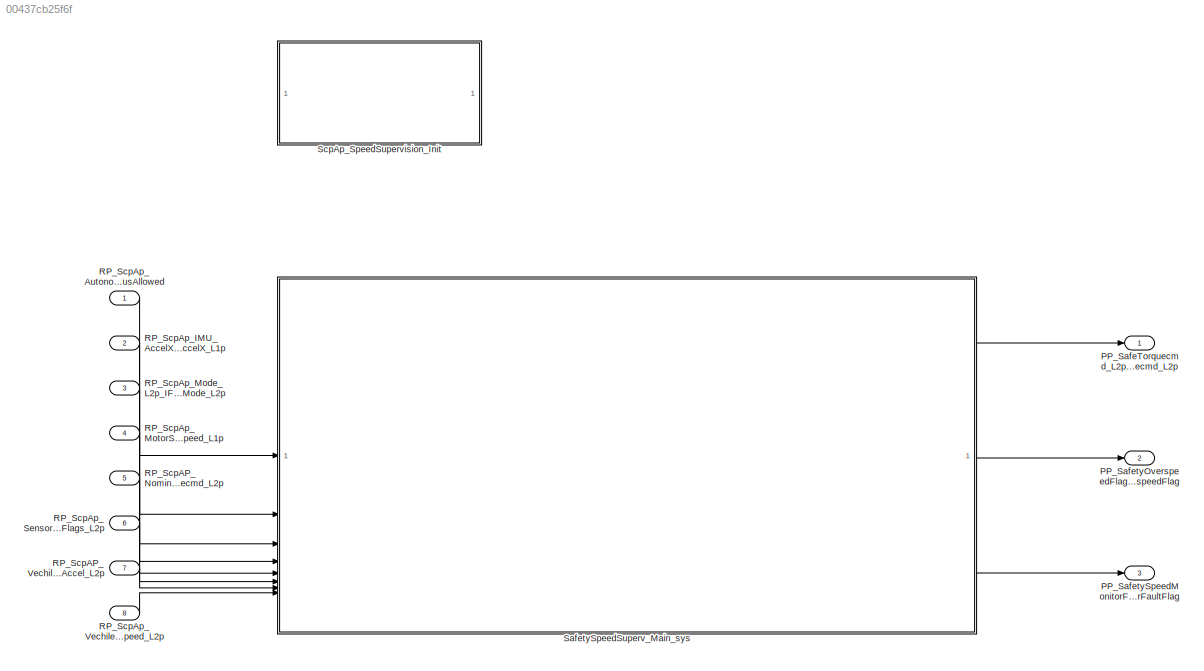
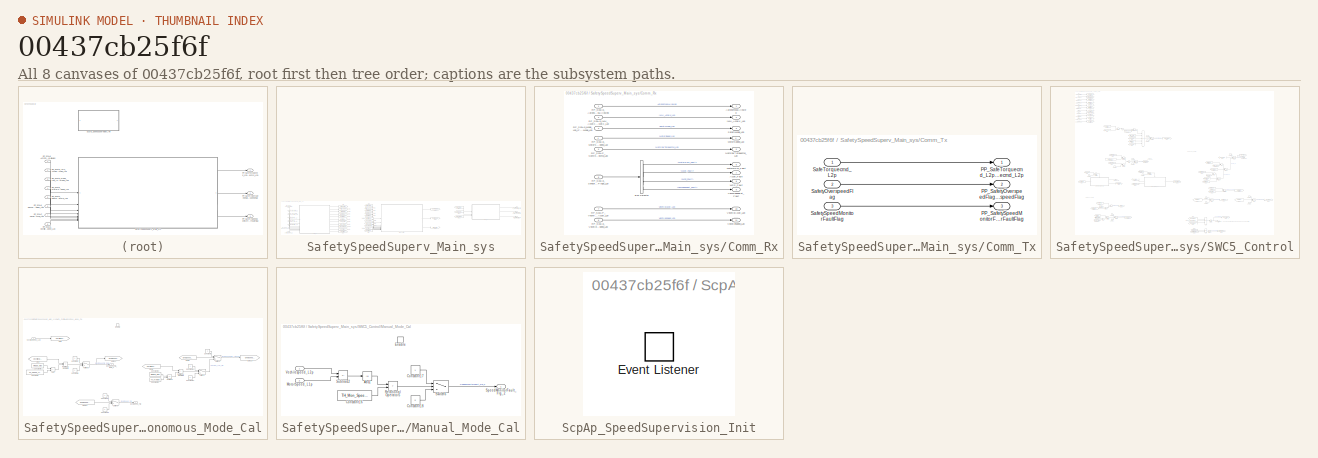
[diagram: thumbnail index - all 8 canvases of the model, root first then tree order]
MODEL slx_00437cb25f6f
KIND model
CONFIG AbsTol = auto
CONFIG EnableMultiTasking = off
CONFIG FixedStep = 0.01
CONFIG MaxStep = auto
CONFIG MinStep = auto
CONFIG RelTol = 1e-3
CONFIG SampleTimeConstraint = Unconstrained
CONFIG SolverName = FixedStepDiscrete
CONFIG StartTime = 0.0
CONFIG StopTime = 10.0
WORKSPACE source: mxarray member
WORKSPACE K_Pred: Simulink.Parameter (value not decoded)
WORKSPACE TH_Hystersis: Simulink.Parameter (value not decoded)
WORKSPACE TH_Mon_Accel_Diff: Simulink.Parameter (value not decoded)
WORKSPACE TH_Mon_Speed_Diff: Simulink.Parameter (value not decoded)
WORKSPACE TH_Pred_Margin: Simulink.Parameter (value not decoded)
WORKSPACE TH_Speed_Limit_Margin: Simulink.Parameter (value not decoded)
WORKSPACE Torque_Decel_Limit: Simulink.Parameter (value not decoded)
WORKSPACE Torque_PreLimit: Simulink.Parameter (value not decoded)
BLOCK [Outport] PP_SafeTorquecmd_L2p_IF_SafeTorquecmd_L2p
  OutDataTypeStr = int16
  PortDimensions = 1
  SamplingMode = Sample based
  SignalType = real
BLOCK [Outport] PP_SafetyOverspeedFlag_IF_SafetyOverspeedFlag
  OutDataTypeStr = boolean
  Port = 2
  PortDimensions = 1
  SamplingMode = Sample based
  SignalType = real
BLOCK [Outport] PP_SafetySpeedMonitorFaultFlag_IF_SafetySpeedMonitorFaultFlag
  OutDataTypeStr = boolean
  Port = 3
  PortDimensions = 1
  SamplingMode = Sample based
  SignalType = real
BLOCK [Inport] RP_ScpAP_NominalTorquecmd_L2p_IF_NominalTorquecmd_L2p
  OutDataTypeStr = int16
  Port = 5
  PortDimensions = 1
  SamplingMode = Sample based
  SignalType = real
BLOCK [Inport] RP_ScpAP_VechileAccel_L2p_IF_VechileAccel_L2p
  OutDataTypeStr = int16
  Port = 7
  PortDimensions = 1
  SamplingMode = Sample based
  SignalType = real
BLOCK [Inport] RP_ScpAp_AutonomousAllowed_IF_AutonomousAllowed
  OutDataTypeStr = boolean
  PortDimensions = 1
  SamplingMode = Sample based
  SignalType = real
BLOCK [Inport] RP_ScpAp_IMU_AccelX_L1_IF_IMU_AccelX_L1p
  OutDataTypeStr = single
  Port = 2
  PortDimensions = 1
  SamplingMode = Sample based
  SignalType = real
BLOCK [Inport] RP_ScpAp_Mode_L2p_IF_SafetyMode_L2p
  OutDataTypeStr = Enum: SafetyMode_L2p_IDT
  Port = 3
  PortDimensions = 1
  SamplingMode = Sample based
  SignalType = real
BLOCK [Inport] RP_ScpAp_MotorSpeed_L1p_IF_MotorSpeed_L1p
  OutDataTypeStr = uint8
  Port = 4
  PortDimensions = 1
  SamplingMode = Sample based
  SignalType = real
BLOCK [Inport] RP_ScpAp_SensorValidityFlag_L2p_IF_SensorFaultFlags_L2p
  BusOutputAsStruct = on
  OutDataTypeStr = Bus: IF_SensorFaultFlgs_L2p_IDT
  Port = 6
  PortDimensions = 1
  SamplingMode = Sample based
BLOCK [Inport] RP_ScpAp_Vechilespeed_L2p_IF_Vechilespeed_L2p
  OutDataTypeStr = uint16
  Port = 8
  PortDimensions = 1
  SamplingMode = Sample based
  SignalType = real
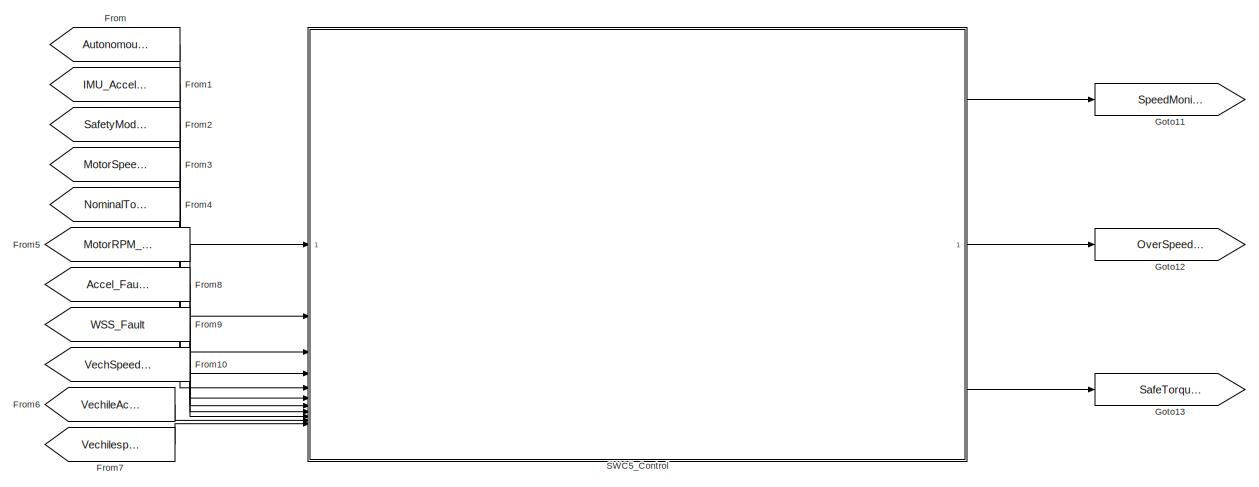
[diagram: SafetySpeedSuperv_Main_sys - part 1/3, center side, full height]
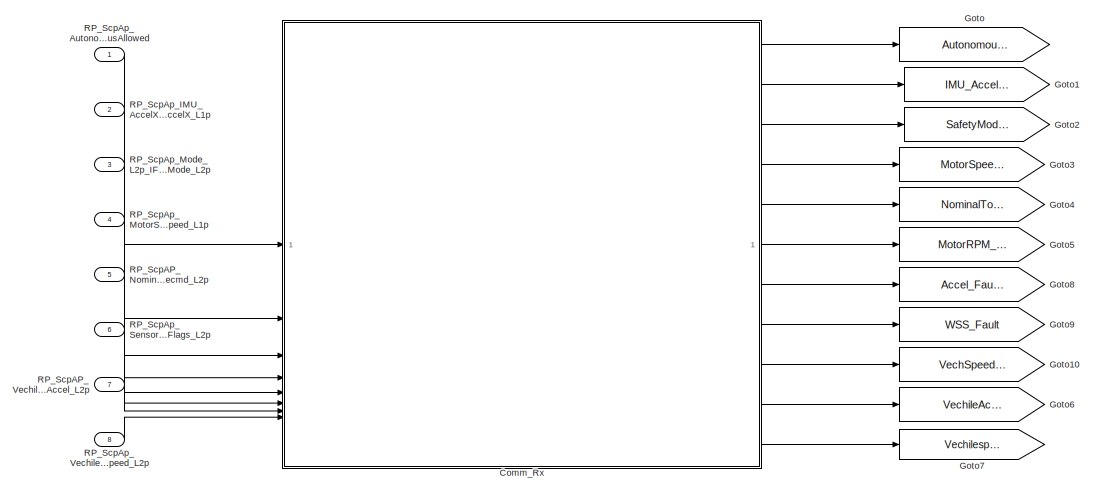
[diagram: SafetySpeedSuperv_Main_sys - part 2/3, left side, full height]
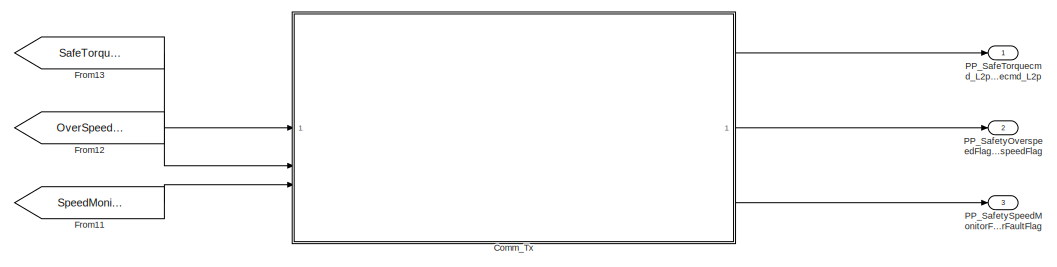
[diagram: SafetySpeedSuperv_Main_sys - part 3/3, top right region]
BLOCK [SubSystem] SafetySpeedSuperv_Main_sys
  SystemSampleTime = 0.01
  TreatAsAtomicUnit = on
BLOCK [SubSystem] SafetySpeedSuperv_Main_sys/Comm_Rx
  TreatAsAtomicUnit = on
BLOCK [Outport] SafetySpeedSuperv_Main_sys/Comm_Rx/Accel_Fault
  Port = 7
BLOCK [Outport] SafetySpeedSuperv_Main_sys/Comm_Rx/AutonomousAllowed
BLOCK [BusSelector] SafetySpeedSuperv_Main_sys/Comm_Rx/Bus Selector
  OutputSignals = MotorRPM_Fault,Accel_Fault,WSS_Fault,VechSpeedEst_Fault
BLOCK [Outport] SafetySpeedSuperv_Main_sys/Comm_Rx/IMU_AccelX_L1p
  Port = 2
BLOCK [Outport] SafetySpeedSuperv_Main_sys/Comm_Rx/MotorRPM_Fault
  Port = 6
BLOCK [Outport] SafetySpeedSuperv_Main_sys/Comm_Rx/MotorSpeed_L1p
  Port = 4
BLOCK [Outport] SafetySpeedSuperv_Main_sys/Comm_Rx/NominalTorquecmd_L2p
  Port = 5
BLOCK [Inport] SafetySpeedSuperv_Main_sys/Comm_Rx/RP_ScpAP_NominalTorquecmd_L2p_IF_NominalTorquecmd_L2p
  Port = 5
BLOCK [Inport] SafetySpeedSuperv_Main_sys/Comm_Rx/RP_ScpAP_VechileAccel_L2p_IF_VechileAccel_L2p
  Port = 7
BLOCK [Inport] SafetySpeedSuperv_Main_sys/Comm_Rx/RP_ScpAp_AutonomousAllowed_IF_AutonomousAllowed
BLOCK [Inport] SafetySpeedSuperv_Main_sys/Comm_Rx/RP_ScpAp_IMU_AccelX_L1_IF_IMU_AccelX_L1p
  Port = 2
BLOCK [Inport] SafetySpeedSuperv_Main_sys/Comm_Rx/RP_ScpAp_Mode_L2p_IF_SafetyMode_L2p
  Port = 3
BLOCK [Inport] SafetySpeedSuperv_Main_sys/Comm_Rx/RP_ScpAp_MotorSpeed_L1p_IF_MotorSpeed_L1p
  Port = 4
BLOCK [Inport] SafetySpeedSuperv_Main_sys/Comm_Rx/RP_ScpAp_SensorValidityFlag_L2p_IF_SensorFaultFlags_L2p
  Port = 6
BLOCK [Inport] SafetySpeedSuperv_Main_sys/Comm_Rx/RP_ScpAp_Vechilespeed_L2p_IF_Vechilespeed_L2p
  Port = 8
BLOCK [Outport] SafetySpeedSuperv_Main_sys/Comm_Rx/SafetyMode_L2p
  Port = 3
BLOCK [Outport] SafetySpeedSuperv_Main_sys/Comm_Rx/VechSpeedEst_Fault
  Port = 9
BLOCK [Outport] SafetySpeedSuperv_Main_sys/Comm_Rx/VechileAccel_L2p
  Port = 10
BLOCK [Outport] SafetySpeedSuperv_Main_sys/Comm_Rx/Vechilespeed_L2p
  Port = 11
BLOCK [Outport] SafetySpeedSuperv_Main_sys/Comm_Rx/WSS_Fault
  Port = 8
BLOCK [SubSystem] SafetySpeedSuperv_Main_sys/Comm_Tx
  TreatAsAtomicUnit = on
BLOCK [Outport] SafetySpeedSuperv_Main_sys/Comm_Tx/PP_SafeTorquecmd_L2p_IF_SafeTorquecmd_L2p
BLOCK [Outport] SafetySpeedSuperv_Main_sys/Comm_Tx/PP_SafetyOverspeedFlag_IF_SafetyOverspeedFlag
  Port = 2
BLOCK [Outport] SafetySpeedSuperv_Main_sys/Comm_Tx/PP_SafetySpeedMonitorFaultFlag_IF_SafetySpeedMonitorFaultFlag
  Port = 3
BLOCK [Inport] SafetySpeedSuperv_Main_sys/Comm_Tx/SafeTorquecmd_L2p
BLOCK [Inport] SafetySpeedSuperv_Main_sys/Comm_Tx/SafetyOverspeedFlag
  Port = 2
BLOCK [Inport] SafetySpeedSuperv_Main_sys/Comm_Tx/SafetySpeedMonitorFaultFlag
  Port = 3
BLOCK [From] SafetySpeedSuperv_Main_sys/From
  GotoTag = AutonomousAllowed
BLOCK [From] SafetySpeedSuperv_Main_sys/From1
  GotoTag = IMU_AccelX_L1p
BLOCK [From] SafetySpeedSuperv_Main_sys/From10
  GotoTag = VechSpeedEst_Fault
BLOCK [From] SafetySpeedSuperv_Main_sys/From11
  GotoTag = SpeedMonitorFaultFlag
BLOCK [From] SafetySpeedSuperv_Main_sys/From12
  GotoTag = OverSpeed_Flg
BLOCK [From] SafetySpeedSuperv_Main_sys/From13
  GotoTag = SafeTorqueCmd_L2
BLOCK [From] SafetySpeedSuperv_Main_sys/From2
  GotoTag = SafetyMode_L2p
BLOCK [From] SafetySpeedSuperv_Main_sys/From3
  GotoTag = MotorSpeed_L1p
BLOCK [From] SafetySpeedSuperv_Main_sys/From4
  GotoTag = NominalTorquecmd_L2p
BLOCK [From] SafetySpeedSuperv_Main_sys/From5
  GotoTag = MotorRPM_Fault
BLOCK [From] SafetySpeedSuperv_Main_sys/From6
  GotoTag = VechileAccel_L2p
BLOCK [From] SafetySpeedSuperv_Main_sys/From7
  GotoTag = Vechilespeed_L2p
BLOCK [From] SafetySpeedSuperv_Main_sys/From8
  GotoTag = Accel_Fault
BLOCK [From] SafetySpeedSuperv_Main_sys/From9
  GotoTag = WSS_Fault
BLOCK [Goto] SafetySpeedSuperv_Main_sys/Goto
  GotoTag = AutonomousAllowed
BLOCK [Goto] SafetySpeedSuperv_Main_sys/Goto1
  GotoTag = IMU_AccelX_L1p
BLOCK [Goto] SafetySpeedSuperv_Main_sys/Goto10
  GotoTag = VechSpeedEst_Fault
BLOCK [Goto] SafetySpeedSuperv_Main_sys/Goto11
  GotoTag = SpeedMonitorFaultFlag
BLOCK [Goto] SafetySpeedSuperv_Main_sys/Goto12
  GotoTag = OverSpeed_Flg
BLOCK [Goto] SafetySpeedSuperv_Main_sys/Goto13
  GotoTag = SafeTorqueCmd_L2
BLOCK [Goto] SafetySpeedSuperv_Main_sys/Goto2
  GotoTag = SafetyMode_L2p
BLOCK [Goto] SafetySpeedSuperv_Main_sys/Goto3
  GotoTag = MotorSpeed_L1p
BLOCK [Goto] SafetySpeedSuperv_Main_sys/Goto4
  GotoTag = NominalTorquecmd_L2p
BLOCK [Goto] SafetySpeedSuperv_Main_sys/Goto5
  GotoTag = MotorRPM_Fault
BLOCK [Goto] SafetySpeedSuperv_Main_sys/Goto6
  GotoTag = VechileAccel_L2p
BLOCK [Goto] SafetySpeedSuperv_Main_sys/Goto7
  GotoTag = Vechilespeed_L2p
BLOCK [Goto] SafetySpeedSuperv_Main_sys/Goto8
  GotoTag = Accel_Fault
BLOCK [Goto] SafetySpeedSuperv_Main_sys/Goto9
  GotoTag = WSS_Fault
BLOCK [Outport] SafetySpeedSuperv_Main_sys/PP_SafeTorquecmd_L2p_IF_SafeTorquecmd_L2p
BLOCK [Outport] SafetySpeedSuperv_Main_sys/PP_SafetyOverspeedFlag_IF_SafetyOverspeedFlag
  Port = 2
BLOCK [Outport] SafetySpeedSuperv_Main_sys/PP_SafetySpeedMonitorFaultFlag_IF_SafetySpeedMonitorFaultFlag
  Port = 3
BLOCK [Inport] SafetySpeedSuperv_Main_sys/RP_ScpAP_NominalTorquecmd_L2p_IF_NominalTorquecmd_L2p
  Port = 5
BLOCK [Inport] SafetySpeedSuperv_Main_sys/RP_ScpAP_VechileAccel_L2p_IF_VechileAccel_L2p
  Port = 7
BLOCK [Inport] SafetySpeedSuperv_Main_sys/RP_ScpAp_AutonomousAllowed_IF_AutonomousAllowed
BLOCK [Inport] SafetySpeedSuperv_Main_sys/RP_ScpAp_IMU_AccelX_L1_IF_IMU_AccelX_L1p
  Port = 2
BLOCK [Inport] SafetySpeedSuperv_Main_sys/RP_ScpAp_Mode_L2p_IF_SafetyMode_L2p
  Port = 3
BLOCK [Inport] SafetySpeedSuperv_Main_sys/RP_ScpAp_MotorSpeed_L1p_IF_MotorSpeed_L1p
  Port = 4
BLOCK [Inport] SafetySpeedSuperv_Main_sys/RP_ScpAp_SensorValidityFlag_L2p_IF_SensorFaultFlags_L2p
  Port = 6
BLOCK [Inport] SafetySpeedSuperv_Main_sys/RP_ScpAp_Vechilespeed_L2p_IF_Vechilespeed_L2p
  Port = 8
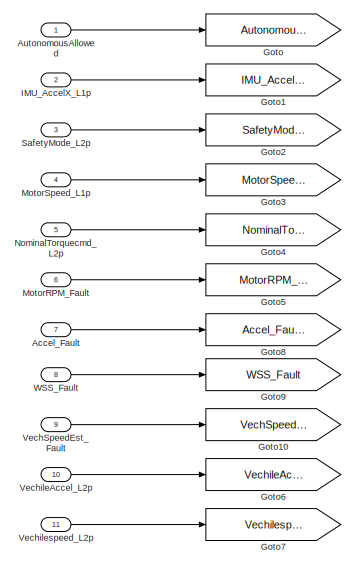
[diagram: SafetySpeedSuperv_Main_sys/SWC5_Control - part 1/7, top left region]
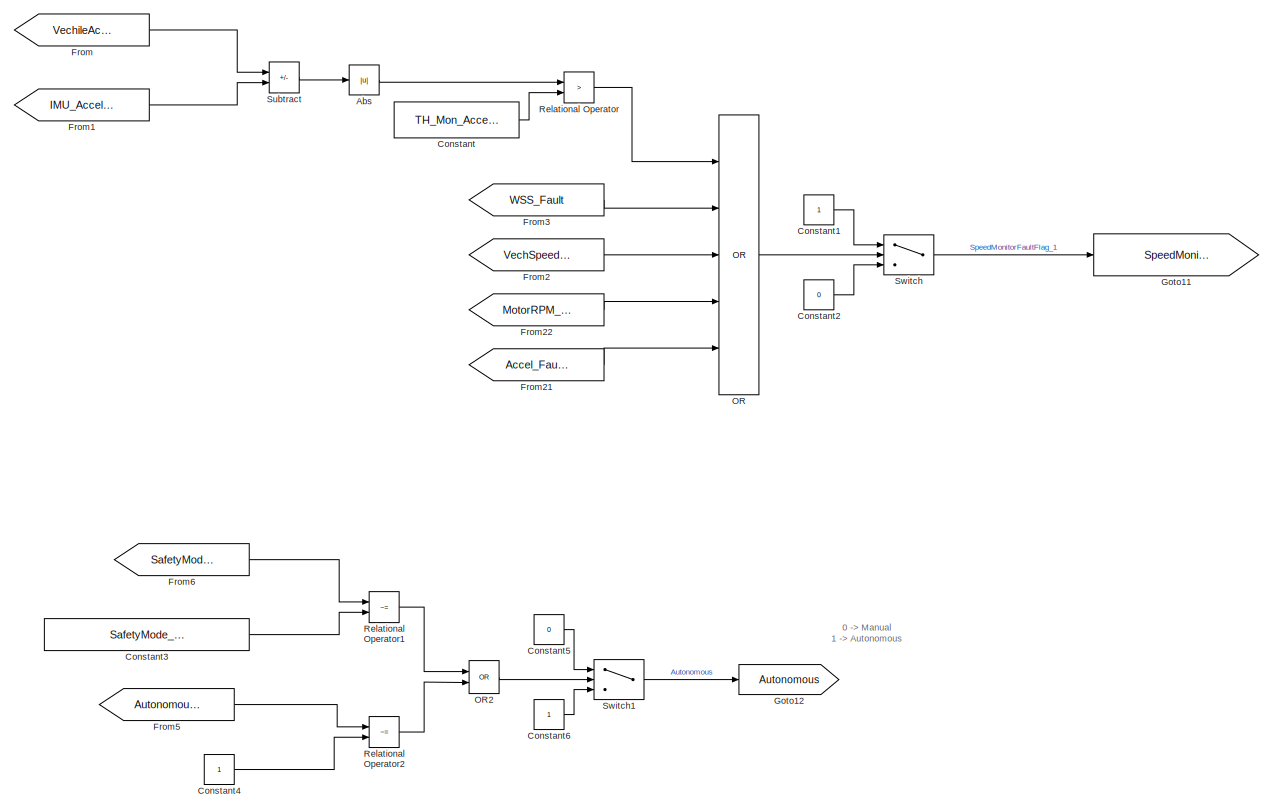
[diagram: SafetySpeedSuperv_Main_sys/SWC5_Control - part 2/7, middle left region]
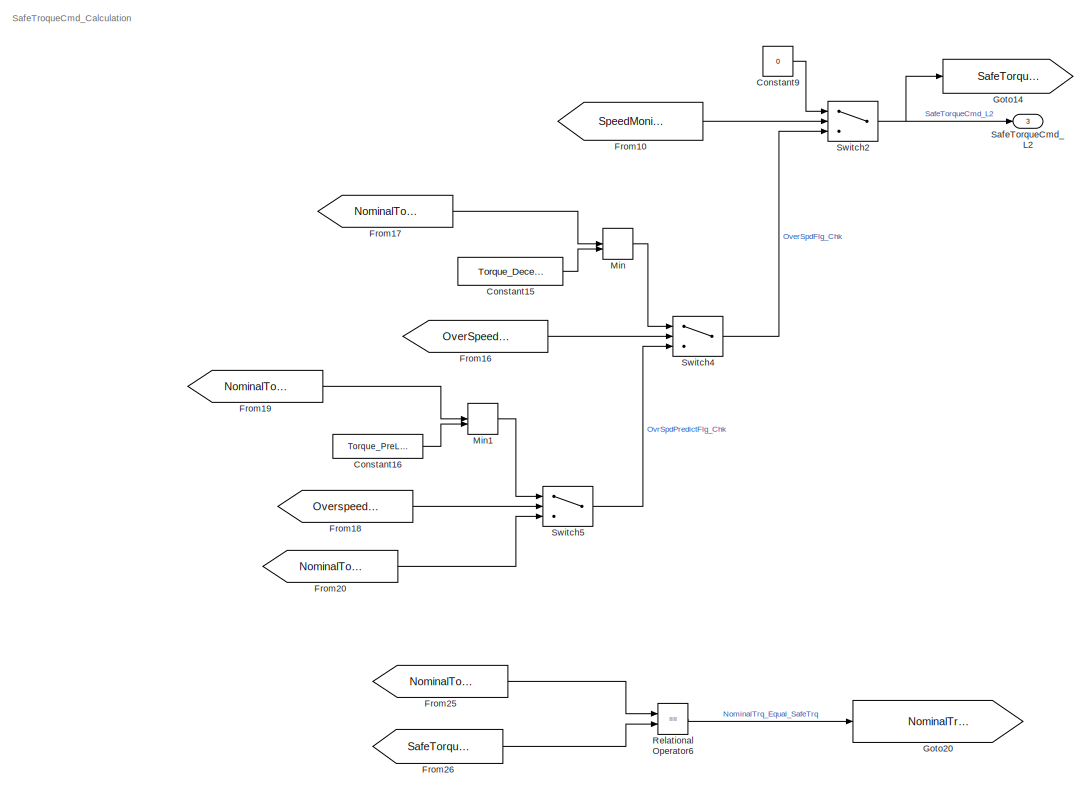
[diagram: SafetySpeedSuperv_Main_sys/SWC5_Control - part 3/7, middle right region]
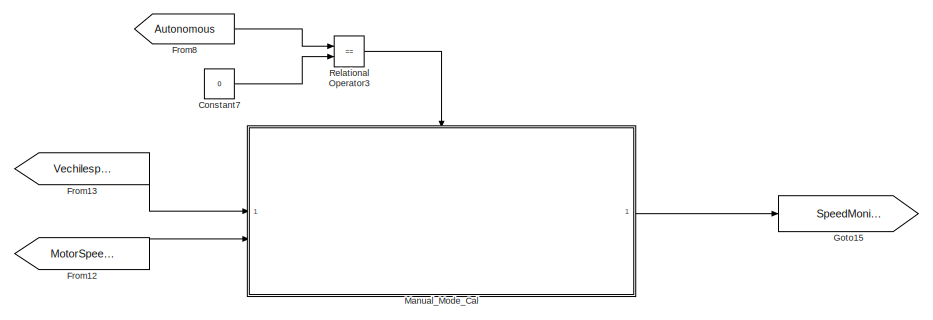
[diagram: SafetySpeedSuperv_Main_sys/SWC5_Control - part 4/7, central region]
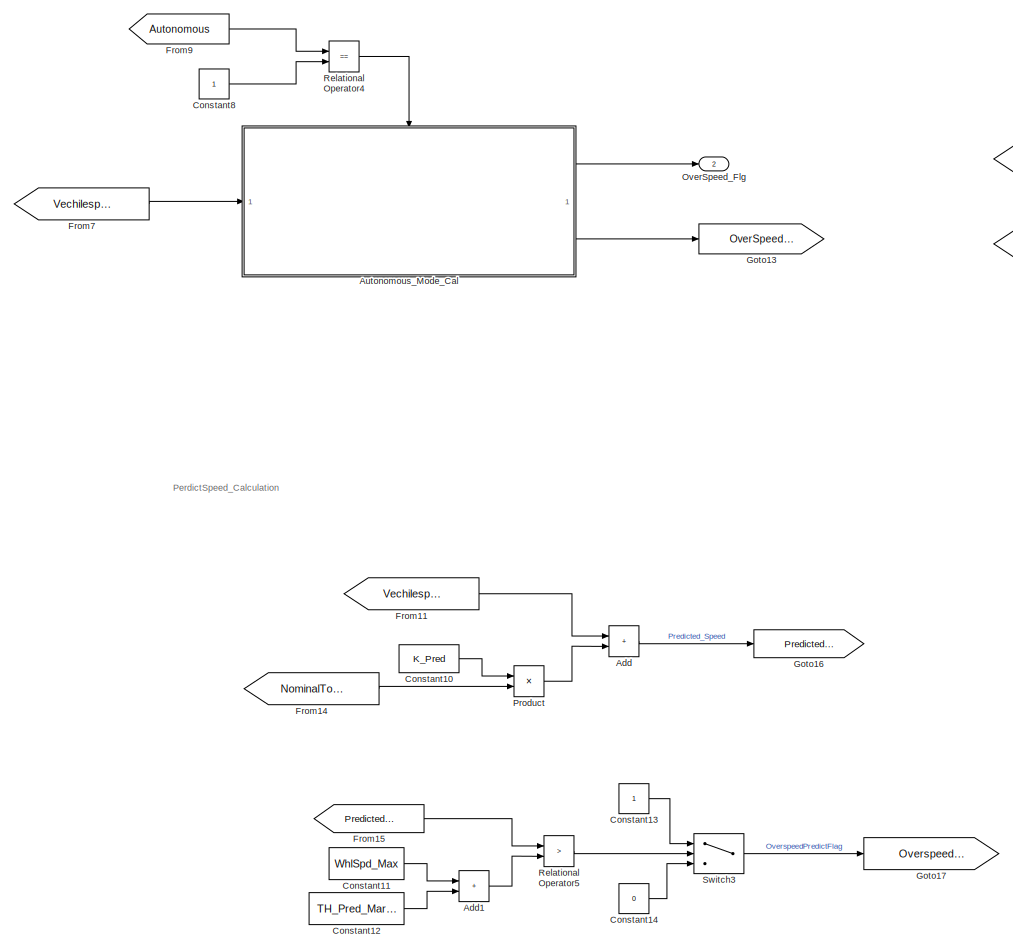
[diagram: SafetySpeedSuperv_Main_sys/SWC5_Control - part 5/7, bottom left region]
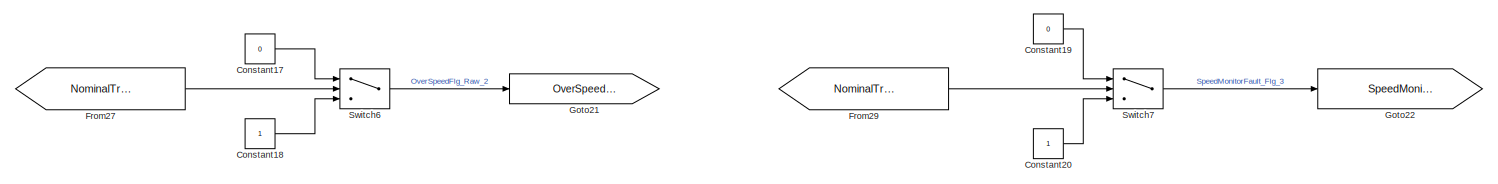
[diagram: SafetySpeedSuperv_Main_sys/SWC5_Control - part 6/7, bottom right region]
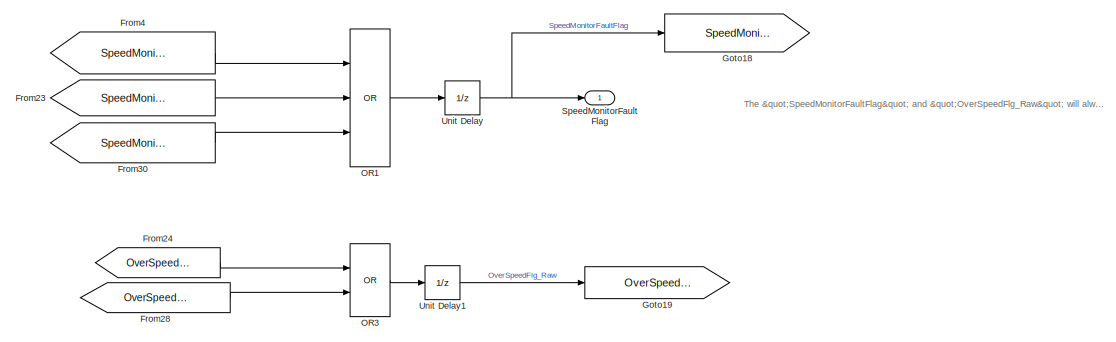
[diagram: SafetySpeedSuperv_Main_sys/SWC5_Control - part 7/7, bottom right region]
BLOCK [SubSystem] SafetySpeedSuperv_Main_sys/SWC5_Control
  TreatAsAtomicUnit = on
BLOCK [Abs] SafetySpeedSuperv_Main_sys/SWC5_Control/Abs
  SaturateOnIntegerOverflow = off
BLOCK [Inport] SafetySpeedSuperv_Main_sys/SWC5_Control/Accel_Fault
  Port = 7
BLOCK [Sum] SafetySpeedSuperv_Main_sys/SWC5_Control/Add
  IconShape = rectangular
BLOCK [Sum] SafetySpeedSuperv_Main_sys/SWC5_Control/Add1
  IconShape = rectangular
BLOCK [Inport] SafetySpeedSuperv_Main_sys/SWC5_Control/AutonomousAllowed
BLOCK [SubSystem] SafetySpeedSuperv_Main_sys/SWC5_Control/Autonomous_Mode_Cal
BLOCK [Sum] SafetySpeedSuperv_Main_sys/SWC5_Control/Autonomous_Mode_Cal/Add
  IconShape = rectangular
BLOCK [Constant] SafetySpeedSuperv_Main_sys/SWC5_Control/Autonomous_Mode_Cal/Constant10
  Value = WhlSpd_Max
BLOCK [Constant] SafetySpeedSuperv_Main_sys/SWC5_Control/Autonomous_Mode_Cal/Constant11
  Value = TH_Hystersis
BLOCK [Constant] SafetySpeedSuperv_Main_sys/SWC5_Control/Autonomous_Mode_Cal/Constant12
  OutDataTypeStr = boolean
BLOCK [Constant] SafetySpeedSuperv_Main_sys/SWC5_Control/Autonomous_Mode_Cal/Constant13
  OutDataTypeStr = boolean
  Value = 0
BLOCK [Constant] SafetySpeedSuperv_Main_sys/SWC5_Control/Autonomous_Mode_Cal/Constant14
  OutDataTypeStr = boolean
BLOCK [Constant] SafetySpeedSuperv_Main_sys/SWC5_Control/Autonomous_Mode_Cal/Constant15
  OutDataTypeStr = boolean
  Value = 0
BLOCK [Constant] SafetySpeedSuperv_Main_sys/SWC5_Control/Autonomous_Mode_Cal/Constant5
  Value = WhlSpd_Max
BLOCK [Constant] SafetySpeedSuperv_Main_sys/SWC5_Control/Autonomous_Mode_Cal/Constant6
  Value = TH_Speed_Limit_Margin
BLOCK [Constant] SafetySpeedSuperv_Main_sys/SWC5_Control/Autonomous_Mode_Cal/Constant7
  OutDataTypeStr = boolean
BLOCK [Constant] SafetySpeedSuperv_Main_sys/SWC5_Control/Autonomous_Mode_Cal/Constant8
  OutDataTypeStr = boolean
  Value = 0
BLOCK [Constant] SafetySpeedSuperv_Main_sys/SWC5_Control/Autonomous_Mode_Cal/Constant9
  OutDataTypeStr = boolean
BLOCK [EnablePort] SafetySpeedSuperv_Main_sys/SWC5_Control/Autonomous_Mode_Cal/Enable
BLOCK [From] SafetySpeedSuperv_Main_sys/SWC5_Control/Autonomous_Mode_Cal/From
  GotoTag = Vechilespeed_L2p
BLOCK [From] SafetySpeedSuperv_Main_sys/SWC5_Control/Autonomous_Mode_Cal/From10
  GotoTag = OverspeedFlag_Latched
BLOCK [From] SafetySpeedSuperv_Main_sys/SWC5_Control/Autonomous_Mode_Cal/From8
  GotoTag = OverSpeedFlg_Raw
BLOCK [From] SafetySpeedSuperv_Main_sys/SWC5_Control/Autonomous_Mode_Cal/From9
  GotoTag = Vechilespeed_L2p
BLOCK [Goto] SafetySpeedSuperv_Main_sys/SWC5_Control/Autonomous_Mode_Cal/Goto
  GotoTag = Vechilespeed_L2p
BLOCK [Goto] SafetySpeedSuperv_Main_sys/SWC5_Control/Autonomous_Mode_Cal/Goto12
  GotoTag = OverSpeedFlg_Raw
BLOCK [Goto] SafetySpeedSuperv_Main_sys/SWC5_Control/Autonomous_Mode_Cal/Goto13
  GotoTag = OverspeedFlag_Latched
BLOCK [Outport] SafetySpeedSuperv_Main_sys/SWC5_Control/Autonomous_Mode_Cal/OverSpeedFlg_Raw_1
  Port = 2
BLOCK [Outport] SafetySpeedSuperv_Main_sys/SWC5_Control/Autonomous_Mode_Cal/OverSpeed_Flg
BLOCK [RelationalOperator] SafetySpeedSuperv_Main_sys/SWC5_Control/Autonomous_Mode_Cal/Relational Operator3
  InputSameDT = off
  Operator = >
  OutDataTypeStr = boolean
  RndMeth = Simplest
BLOCK [RelationalOperator] SafetySpeedSuperv_Main_sys/SWC5_Control/Autonomous_Mode_Cal/Relational Operator4
  InputSameDT = off
  Operator = >
  OutDataTypeStr = boolean
  RndMeth = Simplest
BLOCK [Sum] SafetySpeedSuperv_Main_sys/SWC5_Control/Autonomous_Mode_Cal/Subtract1
  IconShape = rectangular
  Inputs = +-
BLOCK [Switch] SafetySpeedSuperv_Main_sys/SWC5_Control/Autonomous_Mode_Cal/Switch2
  Criteria = u2 > Threshold
  InputSameDT = off
  SaturateOnIntegerOverflow = off
BLOCK [Switch] SafetySpeedSuperv_Main_sys/SWC5_Control/Autonomous_Mode_Cal/Switch3
  Criteria = u2 > Threshold
  InputSameDT = off
  SaturateOnIntegerOverflow = off
BLOCK [Switch] SafetySpeedSuperv_Main_sys/SWC5_Control/Autonomous_Mode_Cal/Switch4
  Criteria = u2 > Threshold
  InputSameDT = off
  SaturateOnIntegerOverflow = off
BLOCK [Switch] SafetySpeedSuperv_Main_sys/SWC5_Control/Autonomous_Mode_Cal/Switch5
  Criteria = u2 > Threshold
  InputSameDT = off
  SaturateOnIntegerOverflow = off
BLOCK [Inport] SafetySpeedSuperv_Main_sys/SWC5_Control/Autonomous_Mode_Cal/Vechilespeed_L2p
BLOCK [Constant] SafetySpeedSuperv_Main_sys/SWC5_Control/Constant
  Value = TH_Mon_Accel_Diff
BLOCK [Constant] SafetySpeedSuperv_Main_sys/SWC5_Control/Constant1
BLOCK [Constant] SafetySpeedSuperv_Main_sys/SWC5_Control/Constant10
  Value = K_Pred
BLOCK [Constant] SafetySpeedSuperv_Main_sys/SWC5_Control/Constant11
  Value = WhlSpd_Max
BLOCK [Constant] SafetySpeedSuperv_Main_sys/SWC5_Control/Constant12
  Value = TH_Pred_Margin
BLOCK [Constant] SafetySpeedSuperv_Main_sys/SWC5_Control/Constant13
BLOCK [Constant] SafetySpeedSuperv_Main_sys/SWC5_Control/Constant14
  Value = 0
BLOCK [Constant] SafetySpeedSuperv_Main_sys/SWC5_Control/Constant15
  OutDataTypeStr = int16
  Value = Torque_Decel_Limit
BLOCK [Constant] SafetySpeedSuperv_Main_sys/SWC5_Control/Constant16
  OutDataTypeStr = int16
  Value = Torque_PreLimit
BLOCK [Constant] SafetySpeedSuperv_Main_sys/SWC5_Control/Constant17
  Value = 0
BLOCK [Constant] SafetySpeedSuperv_Main_sys/SWC5_Control/Constant18
BLOCK [Constant] SafetySpeedSuperv_Main_sys/SWC5_Control/Constant19
  Value = 0
BLOCK [Constant] SafetySpeedSuperv_Main_sys/SWC5_Control/Constant2
  Value = 0
BLOCK [Constant] SafetySpeedSuperv_Main_sys/SWC5_Control/Constant20
BLOCK [Constant] SafetySpeedSuperv_Main_sys/SWC5_Control/Constant3
  Value = SafetyMode_L2p_IDT.AUTONOMOUS
BLOCK [Constant] SafetySpeedSuperv_Main_sys/SWC5_Control/Constant4
  OutDataTypeStr = boolean
BLOCK [Constant] SafetySpeedSuperv_Main_sys/SWC5_Control/Constant5
  OutDataTypeStr = boolean
  Value = 0
BLOCK [Constant] SafetySpeedSuperv_Main_sys/SWC5_Control/Constant6
  OutDataTypeStr = boolean
BLOCK [Constant] SafetySpeedSuperv_Main_sys/SWC5_Control/Constant7
  Value = 0
BLOCK [Constant] SafetySpeedSuperv_Main_sys/SWC5_Control/Constant8
BLOCK [Constant] SafetySpeedSuperv_Main_sys/SWC5_Control/Constant9
  OutDataTypeStr = int16
  Value = 0
BLOCK [From] SafetySpeedSuperv_Main_sys/SWC5_Control/From
  GotoTag = VechileAccel_L2p
BLOCK [From] SafetySpeedSuperv_Main_sys/SWC5_Control/From1
  GotoTag = IMU_AccelX_L1p
BLOCK [From] SafetySpeedSuperv_Main_sys/SWC5_Control/From10
  GotoTag = SpeedMonitorFaultFlag
BLOCK [From] SafetySpeedSuperv_Main_sys/SWC5_Control/From11
  GotoTag = Vechilespeed_L2p
BLOCK [From] SafetySpeedSuperv_Main_sys/SWC5_Control/From12
  GotoTag = MotorSpeed_L1p
BLOCK [From] SafetySpeedSuperv_Main_sys/SWC5_Control/From13
  GotoTag = Vechilespeed_L2p
BLOCK [From] SafetySpeedSuperv_Main_sys/SWC5_Control/From14
  GotoTag = NominalTorquecmd_L2p
BLOCK [From] SafetySpeedSuperv_Main_sys/SWC5_Control/From15
  GotoTag = Predicted_Speed
BLOCK [From] SafetySpeedSuperv_Main_sys/SWC5_Control/From16
  GotoTag = OverSpeedFlg_Raw
BLOCK [From] SafetySpeedSuperv_Main_sys/SWC5_Control/From17
  GotoTag = NominalTorquecmd_L2p
BLOCK [From] SafetySpeedSuperv_Main_sys/SWC5_Control/From18
  GotoTag = OverspeedPredictFlag
BLOCK [From] SafetySpeedSuperv_Main_sys/SWC5_Control/From19
  GotoTag = NominalTorquecmd_L2p
BLOCK [From] SafetySpeedSuperv_Main_sys/SWC5_Control/From2
  GotoTag = VechSpeedEst_Fault
BLOCK [From] SafetySpeedSuperv_Main_sys/SWC5_Control/From20
  GotoTag = NominalTorquecmd_L2p
BLOCK [From] SafetySpeedSuperv_Main_sys/SWC5_Control/From21
  GotoTag = Accel_Fault
BLOCK [From] SafetySpeedSuperv_Main_sys/SWC5_Control/From22
  GotoTag = MotorRPM_Fault
BLOCK [From] SafetySpeedSuperv_Main_sys/SWC5_Control/From23
  GotoTag = SpeedMonitorFault_Flg_2
BLOCK [From] SafetySpeedSuperv_Main_sys/SWC5_Control/From24
  GotoTag = OverSpeedFlg_Raw_1
BLOCK [From] SafetySpeedSuperv_Main_sys/SWC5_Control/From25
  GotoTag = NominalTorquecmd_L2p
BLOCK [From] SafetySpeedSuperv_Main_sys/SWC5_Control/From26
  GotoTag = SafeTorqueCmd_L2
BLOCK [From] SafetySpeedSuperv_Main_sys/SWC5_Control/From27
  GotoTag = NominalTrq_Equal_SafeTrq
BLOCK [From] SafetySpeedSuperv_Main_sys/SWC5_Control/From28
  GotoTag = OverSpeedFlg_Raw_2
BLOCK [From] SafetySpeedSuperv_Main_sys/SWC5_Control/From29
  GotoTag = NominalTrq_Equal_SafeTrq
BLOCK [From] SafetySpeedSuperv_Main_sys/SWC5_Control/From3
  GotoTag = WSS_Fault
BLOCK [From] SafetySpeedSuperv_Main_sys/SWC5_Control/From30
  GotoTag = SpeedMonitorFault_Flg_3
BLOCK [From] SafetySpeedSuperv_Main_sys/SWC5_Control/From4
  GotoTag = SpeedMonitorFaultFlag_1
BLOCK [From] SafetySpeedSuperv_Main_sys/SWC5_Control/From5
  GotoTag = AutonomousAllowed
BLOCK [From] SafetySpeedSuperv_Main_sys/SWC5_Control/From6
  GotoTag = SafetyMode_L2p
BLOCK [From] SafetySpeedSuperv_Main_sys/SWC5_Control/From7
  GotoTag = Vechilespeed_L2p
BLOCK [From] SafetySpeedSuperv_Main_sys/SWC5_Control/From8
  GotoTag = Autonomous
BLOCK [From] SafetySpeedSuperv_Main_sys/SWC5_Control/From9
  GotoTag = Autonomous
BLOCK [Goto] SafetySpeedSuperv_Main_sys/SWC5_Control/Goto
  GotoTag = AutonomousAllowed
BLOCK [Goto] SafetySpeedSuperv_Main_sys/SWC5_Control/Goto1
  GotoTag = IMU_AccelX_L1p
BLOCK [Goto] SafetySpeedSuperv_Main_sys/SWC5_Control/Goto10
  GotoTag = VechSpeedEst_Fault
BLOCK [Goto] SafetySpeedSuperv_Main_sys/SWC5_Control/Goto11
  GotoTag = SpeedMonitorFaultFlag_1
BLOCK [Goto] SafetySpeedSuperv_Main_sys/SWC5_Control/Goto12
  GotoTag = Autonomous
BLOCK [Goto] SafetySpeedSuperv_Main_sys/SWC5_Control/Goto13
  GotoTag = OverSpeedFlg_Raw_1
BLOCK [Goto] SafetySpeedSuperv_Main_sys/SWC5_Control/Goto14
  GotoTag = SafeTorqueCmd_L2
BLOCK [Goto] SafetySpeedSuperv_Main_sys/SWC5_Control/Goto15
  GotoTag = SpeedMonitorFault_Flg_2
BLOCK [Goto] SafetySpeedSuperv_Main_sys/SWC5_Control/Goto16
  GotoTag = Predicted_Speed
BLOCK [Goto] SafetySpeedSuperv_Main_sys/SWC5_Control/Goto17
  GotoTag = OverspeedPredictFlag
BLOCK [Goto] SafetySpeedSuperv_Main_sys/SWC5_Control/Goto18
  GotoTag = SpeedMonitorFaultFlag
BLOCK [Goto] SafetySpeedSuperv_Main_sys/SWC5_Control/Goto19
  GotoTag = OverSpeedFlg_Raw
BLOCK [Goto] SafetySpeedSuperv_Main_sys/SWC5_Control/Goto2
  GotoTag = SafetyMode_L2p
BLOCK [Goto] SafetySpeedSuperv_Main_sys/SWC5_Control/Goto20
  GotoTag = NominalTrq_Equal_SafeTrq
BLOCK [Goto] SafetySpeedSuperv_Main_sys/SWC5_Control/Goto21
  GotoTag = OverSpeedFlg_Raw_2
BLOCK [Goto] SafetySpeedSuperv_Main_sys/SWC5_Control/Goto22
  GotoTag = SpeedMonitorFault_Flg_3
BLOCK [Goto] SafetySpeedSuperv_Main_sys/SWC5_Control/Goto3
  GotoTag = MotorSpeed_L1p
BLOCK [Goto] SafetySpeedSuperv_Main_sys/SWC5_Control/Goto4
  GotoTag = NominalTorquecmd_L2p
BLOCK [Goto] SafetySpeedSuperv_Main_sys/SWC5_Control/Goto5
  GotoTag = MotorRPM_Fault
BLOCK [Goto] SafetySpeedSuperv_Main_sys/SWC5_Control/Goto6
  GotoTag = VechileAccel_L2p
BLOCK [Goto] SafetySpeedSuperv_Main_sys/SWC5_Control/Goto7
  GotoTag = Vechilespeed_L2p
BLOCK [Goto] SafetySpeedSuperv_Main_sys/SWC5_Control/Goto8
  GotoTag = Accel_Fault
BLOCK [Goto] SafetySpeedSuperv_Main_sys/SWC5_Control/Goto9
  GotoTag = WSS_Fault
BLOCK [Inport] SafetySpeedSuperv_Main_sys/SWC5_Control/IMU_AccelX_L1p
  Port = 2
BLOCK [SubSystem] SafetySpeedSuperv_Main_sys/SWC5_Control/Manual_Mode_Cal
BLOCK [Abs] SafetySpeedSuperv_Main_sys/SWC5_Control/Manual_Mode_Cal/Abs1
  SaturateOnIntegerOverflow = off
BLOCK [Constant] SafetySpeedSuperv_Main_sys/SWC5_Control/Manual_Mode_Cal/Constant16
  Value = TH_Mon_Speed_Diff
BLOCK [Constant] SafetySpeedSuperv_Main_sys/SWC5_Control/Manual_Mode_Cal/Constant17
BLOCK [Constant] SafetySpeedSuperv_Main_sys/SWC5_Control/Manual_Mode_Cal/Constant18
  Value = 0
BLOCK [EnablePort] SafetySpeedSuperv_Main_sys/SWC5_Control/Manual_Mode_Cal/Enable
BLOCK [Inport] SafetySpeedSuperv_Main_sys/SWC5_Control/Manual_Mode_Cal/MotorSpeed_L1p
  Port = 2
BLOCK [RelationalOperator] SafetySpeedSuperv_Main_sys/SWC5_Control/Manual_Mode_Cal/Relational Operator5
  InputSameDT = off
  Operator = >
  OutDataTypeStr = boolean
  RndMeth = Simplest
BLOCK [Outport] SafetySpeedSuperv_Main_sys/SWC5_Control/Manual_Mode_Cal/SpeedMonitorFault_Flg_2
BLOCK [Sum] SafetySpeedSuperv_Main_sys/SWC5_Control/Manual_Mode_Cal/Subtract2
  IconShape = rectangular
  Inputs = +-
BLOCK [Switch] SafetySpeedSuperv_Main_sys/SWC5_Control/Manual_Mode_Cal/Switch6
  Criteria = u2 > Threshold
  InputSameDT = off
  SaturateOnIntegerOverflow = off
BLOCK [Inport] SafetySpeedSuperv_Main_sys/SWC5_Control/Manual_Mode_Cal/Vechilespeed_L2p
BLOCK [MinMax] SafetySpeedSuperv_Main_sys/SWC5_Control/Min
  Inputs = 2
  OutDataTypeStr = int16
BLOCK [MinMax] SafetySpeedSuperv_Main_sys/SWC5_Control/Min1
  Inputs = 2
  OutDataTypeStr = int16
BLOCK [Inport] SafetySpeedSuperv_Main_sys/SWC5_Control/MotorRPM_Fault
  Port = 6
BLOCK [Inport] SafetySpeedSuperv_Main_sys/SWC5_Control/MotorSpeed_L1p
  Port = 4
BLOCK [Inport] SafetySpeedSuperv_Main_sys/SWC5_Control/NominalTorquecmd_L2p
  Port = 5
BLOCK [Logic] SafetySpeedSuperv_Main_sys/SWC5_Control/OR
  AllPortsSameDT = off
  Inputs = 5
  Operator = OR
  OutDataTypeStr = boolean
BLOCK [Logic] SafetySpeedSuperv_Main_sys/SWC5_Control/OR1
  AllPortsSameDT = off
  Inputs = 3
  Operator = OR
  OutDataTypeStr = boolean
BLOCK [Logic] SafetySpeedSuperv_Main_sys/SWC5_Control/OR2
  AllPortsSameDT = off
  Operator = OR
  OutDataTypeStr = boolean
BLOCK [Logic] SafetySpeedSuperv_Main_sys/SWC5_Control/OR3
  AllPortsSameDT = off
  Operator = OR
  OutDataTypeStr = boolean
BLOCK [Outport] SafetySpeedSuperv_Main_sys/SWC5_Control/OverSpeed_Flg
  Port = 2
BLOCK [Product] SafetySpeedSuperv_Main_sys/SWC5_Control/Product
BLOCK [RelationalOperator] SafetySpeedSuperv_Main_sys/SWC5_Control/Relational Operator
  InputSameDT = off
  Operator = >
  OutDataTypeStr = boolean
  RndMeth = Simplest
BLOCK [RelationalOperator] SafetySpeedSuperv_Main_sys/SWC5_Control/Relational Operator1
  InputSameDT = off
  Operator = ~=
  OutDataTypeStr = boolean
  RndMeth = Simplest
BLOCK [RelationalOperator] SafetySpeedSuperv_Main_sys/SWC5_Control/Relational Operator2
  InputSameDT = off
  Operator = ~=
  OutDataTypeStr = boolean
  RndMeth = Simplest
BLOCK [RelationalOperator] SafetySpeedSuperv_Main_sys/SWC5_Control/Relational Operator3
  InputSameDT = off
  Operator = ==
  OutDataTypeStr = boolean
  RndMeth = Simplest
BLOCK [RelationalOperator] SafetySpeedSuperv_Main_sys/SWC5_Control/Relational Operator4
  InputSameDT = off
  Operator = ==
  OutDataTypeStr = boolean
  RndMeth = Simplest
BLOCK [RelationalOperator] SafetySpeedSuperv_Main_sys/SWC5_Control/Relational Operator5
  InputSameDT = off
  Operator = >
  OutDataTypeStr = boolean
  RndMeth = Simplest
BLOCK [RelationalOperator] SafetySpeedSuperv_Main_sys/SWC5_Control/Relational Operator6
  InputSameDT = off
  Operator = ==
  OutDataTypeStr = boolean
  RndMeth = Simplest
BLOCK [Outport] SafetySpeedSuperv_Main_sys/SWC5_Control/SafeTorqueCmd_L2
  Port = 3
BLOCK [Inport] SafetySpeedSuperv_Main_sys/SWC5_Control/SafetyMode_L2p
  Port = 3
BLOCK [Outport] SafetySpeedSuperv_Main_sys/SWC5_Control/SpeedMonitorFaultFlag
BLOCK [Sum] SafetySpeedSuperv_Main_sys/SWC5_Control/Subtract
  IconShape = rectangular
  Inputs = +-
BLOCK [Switch] SafetySpeedSuperv_Main_sys/SWC5_Control/Switch
  Criteria = u2 > Threshold
  InputSameDT = off
  SaturateOnIntegerOverflow = off
BLOCK [Switch] SafetySpeedSuperv_Main_sys/SWC5_Control/Switch1
  Criteria = u2 > Threshold
  InputSameDT = off
  SaturateOnIntegerOverflow = off
BLOCK [Switch] SafetySpeedSuperv_Main_sys/SWC5_Control/Switch2
  Criteria = u2 > Threshold
  InputSameDT = off
  SaturateOnIntegerOverflow = off
BLOCK [Switch] SafetySpeedSuperv_Main_sys/SWC5_Control/Switch3
  Criteria = u2 > Threshold
  InputSameDT = off
  SaturateOnIntegerOverflow = off
BLOCK [Switch] SafetySpeedSuperv_Main_sys/SWC5_Control/Switch4
  Criteria = u2 > Threshold
  InputSameDT = off
  SaturateOnIntegerOverflow = off
BLOCK [Switch] SafetySpeedSuperv_Main_sys/SWC5_Control/Switch5
  Criteria = u2 > Threshold
  InputSameDT = off
  SaturateOnIntegerOverflow = off
BLOCK [Switch] SafetySpeedSuperv_Main_sys/SWC5_Control/Switch6
  Criteria = u2 > Threshold
  InputSameDT = off
  SaturateOnIntegerOverflow = off
BLOCK [Switch] SafetySpeedSuperv_Main_sys/SWC5_Control/Switch7
  Criteria = u2 > Threshold
  InputSameDT = off
  SaturateOnIntegerOverflow = off
BLOCK [UnitDelay] SafetySpeedSuperv_Main_sys/SWC5_Control/Unit Delay
  HasFrameUpgradeWarning = on
  SampleTime = -1
BLOCK [UnitDelay] SafetySpeedSuperv_Main_sys/SWC5_Control/Unit Delay1
  HasFrameUpgradeWarning = on
  SampleTime = -1
BLOCK [Inport] SafetySpeedSuperv_Main_sys/SWC5_Control/VechSpeedEst_Fault
  Port = 9
BLOCK [Inport] SafetySpeedSuperv_Main_sys/SWC5_Control/VechileAccel_L2p
  Port = 10
BLOCK [Inport] SafetySpeedSuperv_Main_sys/SWC5_Control/Vechilespeed_L2p
  Port = 11
BLOCK [Inport] SafetySpeedSuperv_Main_sys/SWC5_Control/WSS_Fault
  Port = 8
BLOCK [SubSystem] ScpAp_SpeedSupervision_Init
BLOCK [EventListener] ScpAp_SpeedSupervision_Init/Event Listener
  EventName = reset
ANNOTATION SafetySpeedSuperv_Main_sys/SWC5_Control: 0 -> Manual 1 -> Autonomous
ANNOTATION SafetySpeedSuperv_Main_sys/SWC5_Control: The "SpeedMonitorFaultFlag" and "OverSpeedFlg_Raw" will always be one cycle back data because it is dependent on "NominalTrq_Equal_SafeTrq" and "NominalTrq_Equal_SafeTrq" is dependednt on "SafeTorqueCmd_L2"
ANNOTATION SafetySpeedSuperv_Main_sys/SWC5_Control: PerdictSpeed_Calculation
ANNOTATION SafetySpeedSuperv_Main_sys/SWC5_Control: SafeTroqueCmd_Calculation
LINE RP_ScpAP_NominalTorquecmd_L2p_IF_NominalTorquecmd_L2p:1 -> SafetySpeedSuperv_Main_sys:5
LINE RP_ScpAP_VechileAccel_L2p_IF_VechileAccel_L2p:1 -> SafetySpeedSuperv_Main_sys:7
LINE RP_ScpAp_AutonomousAllowed_IF_AutonomousAllowed:1 -> SafetySpeedSuperv_Main_sys:1
LINE RP_ScpAp_IMU_AccelX_L1_IF_IMU_AccelX_L1p:1 -> SafetySpeedSuperv_Main_sys:2
LINE RP_ScpAp_Mode_L2p_IF_SafetyMode_L2p:1 -> SafetySpeedSuperv_Main_sys:3
LINE RP_ScpAp_MotorSpeed_L1p_IF_MotorSpeed_L1p:1 -> SafetySpeedSuperv_Main_sys:4
LINE RP_ScpAp_SensorValidityFlag_L2p_IF_SensorFaultFlags_L2p:1 -> SafetySpeedSuperv_Main_sys:6
LINE RP_ScpAp_Vechilespeed_L2p_IF_Vechilespeed_L2p:1 -> SafetySpeedSuperv_Main_sys:8
LINE SafetySpeedSuperv_Main_sys/Comm_Rx/Bus Selector:1 -> SafetySpeedSuperv_Main_sys/Comm_Rx/MotorRPM_Fault:1
LINE SafetySpeedSuperv_Main_sys/Comm_Rx/Bus Selector:2 -> SafetySpeedSuperv_Main_sys/Comm_Rx/Accel_Fault:1
LINE SafetySpeedSuperv_Main_sys/Comm_Rx/Bus Selector:3 -> SafetySpeedSuperv_Main_sys/Comm_Rx/WSS_Fault:1
LINE SafetySpeedSuperv_Main_sys/Comm_Rx/Bus Selector:4 -> SafetySpeedSuperv_Main_sys/Comm_Rx/VechSpeedEst_Fault:1
LINE SafetySpeedSuperv_Main_sys/Comm_Rx/RP_ScpAP_NominalTorquecmd_L2p_IF_NominalTorquecmd_L2p:1 -> SafetySpeedSuperv_Main_sys/Comm_Rx/NominalTorquecmd_L2p:1
LINE SafetySpeedSuperv_Main_sys/Comm_Rx/RP_ScpAP_VechileAccel_L2p_IF_VechileAccel_L2p:1 -> SafetySpeedSuperv_Main_sys/Comm_Rx/VechileAccel_L2p:1
LINE SafetySpeedSuperv_Main_sys/Comm_Rx/RP_ScpAp_AutonomousAllowed_IF_AutonomousAllowed:1 -> SafetySpeedSuperv_Main_sys/Comm_Rx/AutonomousAllowed:1
LINE SafetySpeedSuperv_Main_sys/Comm_Rx/RP_ScpAp_IMU_AccelX_L1_IF_IMU_AccelX_L1p:1 -> SafetySpeedSuperv_Main_sys/Comm_Rx/IMU_AccelX_L1p:1
LINE SafetySpeedSuperv_Main_sys/Comm_Rx/RP_ScpAp_Mode_L2p_IF_SafetyMode_L2p:1 -> SafetySpeedSuperv_Main_sys/Comm_Rx/SafetyMode_L2p:1
LINE SafetySpeedSuperv_Main_sys/Comm_Rx/RP_ScpAp_MotorSpeed_L1p_IF_MotorSpeed_L1p:1 -> SafetySpeedSuperv_Main_sys/Comm_Rx/MotorSpeed_L1p:1
LINE SafetySpeedSuperv_Main_sys/Comm_Rx/RP_ScpAp_SensorValidityFlag_L2p_IF_SensorFaultFlags_L2p:1 -> SafetySpeedSuperv_Main_sys/Comm_Rx/Bus Selector:1
LINE SafetySpeedSuperv_Main_sys/Comm_Rx/RP_ScpAp_Vechilespeed_L2p_IF_Vechilespeed_L2p:1 -> SafetySpeedSuperv_Main_sys/Comm_Rx/Vechilespeed_L2p:1
LINE SafetySpeedSuperv_Main_sys/Comm_Rx:1 -> SafetySpeedSuperv_Main_sys/Goto:1
LINE SafetySpeedSuperv_Main_sys/Comm_Rx:10 -> SafetySpeedSuperv_Main_sys/Goto6:1
LINE SafetySpeedSuperv_Main_sys/Comm_Rx:11 -> SafetySpeedSuperv_Main_sys/Goto7:1
LINE SafetySpeedSuperv_Main_sys/Comm_Rx:2 -> SafetySpeedSuperv_Main_sys/Goto1:1
LINE SafetySpeedSuperv_Main_sys/Comm_Rx:3 -> SafetySpeedSuperv_Main_sys/Goto2:1
LINE SafetySpeedSuperv_Main_sys/Comm_Rx:4 -> SafetySpeedSuperv_Main_sys/Goto3:1
LINE SafetySpeedSuperv_Main_sys/Comm_Rx:5 -> SafetySpeedSuperv_Main_sys/Goto4:1
LINE SafetySpeedSuperv_Main_sys/Comm_Rx:6 -> SafetySpeedSuperv_Main_sys/Goto5:1
LINE SafetySpeedSuperv_Main_sys/Comm_Rx:7 -> SafetySpeedSuperv_Main_sys/Goto8:1
LINE SafetySpeedSuperv_Main_sys/Comm_Rx:8 -> SafetySpeedSuperv_Main_sys/Goto9:1
LINE SafetySpeedSuperv_Main_sys/Comm_Rx:9 -> SafetySpeedSuperv_Main_sys/Goto10:1
LINE SafetySpeedSuperv_Main_sys/Comm_Tx/SafeTorquecmd_L2p:1 -> SafetySpeedSuperv_Main_sys/Comm_Tx/PP_SafeTorquecmd_L2p_IF_SafeTorquecmd_L2p:1
LINE SafetySpeedSuperv_Main_sys/Comm_Tx/SafetyOverspeedFlag:1 -> SafetySpeedSuperv_Main_sys/Comm_Tx/PP_SafetyOverspeedFlag_IF_SafetyOverspeedFlag:1
LINE SafetySpeedSuperv_Main_sys/Comm_Tx/SafetySpeedMonitorFaultFlag:1 -> SafetySpeedSuperv_Main_sys/Comm_Tx/PP_SafetySpeedMonitorFaultFlag_IF_SafetySpeedMonitorFaultFlag:1
LINE SafetySpeedSuperv_Main_sys/Comm_Tx:1 -> SafetySpeedSuperv_Main_sys/PP_SafeTorquecmd_L2p_IF_SafeTorquecmd_L2p:1
LINE SafetySpeedSuperv_Main_sys/Comm_Tx:2 -> SafetySpeedSuperv_Main_sys/PP_SafetyOverspeedFlag_IF_SafetyOverspeedFlag:1
LINE SafetySpeedSuperv_Main_sys/Comm_Tx:3 -> SafetySpeedSuperv_Main_sys/PP_SafetySpeedMonitorFaultFlag_IF_SafetySpeedMonitorFaultFlag:1
LINE SafetySpeedSuperv_Main_sys/From10:1 -> SafetySpeedSuperv_Main_sys/SWC5_Control:9
LINE SafetySpeedSuperv_Main_sys/From11:1 -> SafetySpeedSuperv_Main_sys/Comm_Tx:3
LINE SafetySpeedSuperv_Main_sys/From12:1 -> SafetySpeedSuperv_Main_sys/Comm_Tx:2
LINE SafetySpeedSuperv_Main_sys/From13:1 -> SafetySpeedSuperv_Main_sys/Comm_Tx:1
LINE SafetySpeedSuperv_Main_sys/From1:1 -> SafetySpeedSuperv_Main_sys/SWC5_Control:2
LINE SafetySpeedSuperv_Main_sys/From2:1 -> SafetySpeedSuperv_Main_sys/SWC5_Control:3
LINE SafetySpeedSuperv_Main_sys/From3:1 -> SafetySpeedSuperv_Main_sys/SWC5_Control:4
LINE SafetySpeedSuperv_Main_sys/From4:1 -> SafetySpeedSuperv_Main_sys/SWC5_Control:5
LINE SafetySpeedSuperv_Main_sys/From5:1 -> SafetySpeedSuperv_Main_sys/SWC5_Control:6
LINE SafetySpeedSuperv_Main_sys/From6:1 -> SafetySpeedSuperv_Main_sys/SWC5_Control:10
LINE SafetySpeedSuperv_Main_sys/From7:1 -> SafetySpeedSuperv_Main_sys/SWC5_Control:11
LINE SafetySpeedSuperv_Main_sys/From8:1 -> SafetySpeedSuperv_Main_sys/SWC5_Control:7
LINE SafetySpeedSuperv_Main_sys/From9:1 -> SafetySpeedSuperv_Main_sys/SWC5_Control:8
LINE SafetySpeedSuperv_Main_sys/From:1 -> SafetySpeedSuperv_Main_sys/SWC5_Control:1
LINE SafetySpeedSuperv_Main_sys/RP_ScpAP_NominalTorquecmd_L2p_IF_NominalTorquecmd_L2p:1 -> SafetySpeedSuperv_Main_sys/Comm_Rx:5
LINE SafetySpeedSuperv_Main_sys/RP_ScpAP_VechileAccel_L2p_IF_VechileAccel_L2p:1 -> SafetySpeedSuperv_Main_sys/Comm_Rx:7
LINE SafetySpeedSuperv_Main_sys/RP_ScpAp_AutonomousAllowed_IF_AutonomousAllowed:1 -> SafetySpeedSuperv_Main_sys/Comm_Rx:1
LINE SafetySpeedSuperv_Main_sys/RP_ScpAp_IMU_AccelX_L1_IF_IMU_AccelX_L1p:1 -> SafetySpeedSuperv_Main_sys/Comm_Rx:2
LINE SafetySpeedSuperv_Main_sys/RP_ScpAp_Mode_L2p_IF_SafetyMode_L2p:1 -> SafetySpeedSuperv_Main_sys/Comm_Rx:3
LINE SafetySpeedSuperv_Main_sys/RP_ScpAp_MotorSpeed_L1p_IF_MotorSpeed_L1p:1 -> SafetySpeedSuperv_Main_sys/Comm_Rx:4
LINE SafetySpeedSuperv_Main_sys/RP_ScpAp_SensorValidityFlag_L2p_IF_SensorFaultFlags_L2p:1 -> SafetySpeedSuperv_Main_sys/Comm_Rx:6
LINE SafetySpeedSuperv_Main_sys/RP_ScpAp_Vechilespeed_L2p_IF_Vechilespeed_L2p:1 -> SafetySpeedSuperv_Main_sys/Comm_Rx:8
LINE SafetySpeedSuperv_Main_sys/SWC5_Control/Abs:1 -> SafetySpeedSuperv_Main_sys/SWC5_Control/Relational Operator:1
LINE SafetySpeedSuperv_Main_sys/SWC5_Control/Accel_Fault:1 -> SafetySpeedSuperv_Main_sys/SWC5_Control/Goto8:1
LINE SafetySpeedSuperv_Main_sys/SWC5_Control/Add1:1 -> SafetySpeedSuperv_Main_sys/SWC5_Control/Relational Operator5:2
LINE SafetySpeedSuperv_Main_sys/SWC5_Control/Add:1 -> SafetySpeedSuperv_Main_sys/SWC5_Control/Goto16:1
LINE SafetySpeedSuperv_Main_sys/SWC5_Control/AutonomousAllowed:1 -> SafetySpeedSuperv_Main_sys/SWC5_Control/Goto:1
LINE SafetySpeedSuperv_Main_sys/SWC5_Control/Autonomous_Mode_Cal/Add:1 -> SafetySpeedSuperv_Main_sys/SWC5_Control/Autonomous_Mode_Cal/Relational Operator3:2
LINE SafetySpeedSuperv_Main_sys/SWC5_Control/Autonomous_Mode_Cal/Constant10:1 -> SafetySpeedSuperv_Main_sys/SWC5_Control/Autonomous_Mode_Cal/Subtract1:1
LINE SafetySpeedSuperv_Main_sys/SWC5_Control/Autonomous_Mode_Cal/Constant11:1 -> SafetySpeedSuperv_Main_sys/SWC5_Control/Autonomous_Mode_Cal/Subtract1:2
LINE SafetySpeedSuperv_Main_sys/SWC5_Control/Autonomous_Mode_Cal/Constant12:1 -> SafetySpeedSuperv_Main_sys/SWC5_Control/Autonomous_Mode_Cal/Switch4:1
LINE SafetySpeedSuperv_Main_sys/SWC5_Control/Autonomous_Mode_Cal/Constant13:1 -> SafetySpeedSuperv_Main_sys/SWC5_Control/Autonomous_Mode_Cal/Switch4:3
LINE SafetySpeedSuperv_Main_sys/SWC5_Control/Autonomous_Mode_Cal/Constant14:1 -> SafetySpeedSuperv_Main_sys/SWC5_Control/Autonomous_Mode_Cal/Switch5:1
LINE SafetySpeedSuperv_Main_sys/SWC5_Control/Autonomous_Mode_Cal/Constant15:1 -> SafetySpeedSuperv_Main_sys/SWC5_Control/Autonomous_Mode_Cal/Switch5:3
LINE SafetySpeedSuperv_Main_sys/SWC5_Control/Autonomous_Mode_Cal/Constant5:1 -> SafetySpeedSuperv_Main_sys/SWC5_Control/Autonomous_Mode_Cal/Add:1
LINE SafetySpeedSuperv_Main_sys/SWC5_Control/Autonomous_Mode_Cal/Constant6:1 -> SafetySpeedSuperv_Main_sys/SWC5_Control/Autonomous_Mode_Cal/Add:2
LINE SafetySpeedSuperv_Main_sys/SWC5_Control/Autonomous_Mode_Cal/Constant7:1 -> SafetySpeedSuperv_Main_sys/SWC5_Control/Autonomous_Mode_Cal/Switch2:1
LINE SafetySpeedSuperv_Main_sys/SWC5_Control/Autonomous_Mode_Cal/Constant8:1 -> SafetySpeedSuperv_Main_sys/SWC5_Control/Autonomous_Mode_Cal/Switch2:3
LINE SafetySpeedSuperv_Main_sys/SWC5_Control/Autonomous_Mode_Cal/Constant9:1 -> SafetySpeedSuperv_Main_sys/SWC5_Control/Autonomous_Mode_Cal/Switch3:1
LINE SafetySpeedSuperv_Main_sys/SWC5_Control/Autonomous_Mode_Cal/From10:1 -> SafetySpeedSuperv_Main_sys/SWC5_Control/Autonomous_Mode_Cal/Switch5:2
LINE SafetySpeedSuperv_Main_sys/SWC5_Control/Autonomous_Mode_Cal/From8:1 -> SafetySpeedSuperv_Main_sys/SWC5_Control/Autonomous_Mode_Cal/Switch3:2
LINE SafetySpeedSuperv_Main_sys/SWC5_Control/Autonomous_Mode_Cal/From9:1 -> SafetySpeedSuperv_Main_sys/SWC5_Control/Autonomous_Mode_Cal/Relational Operator4:1
LINE SafetySpeedSuperv_Main_sys/SWC5_Control/Autonomous_Mode_Cal/From:1 -> SafetySpeedSuperv_Main_sys/SWC5_Control/Autonomous_Mode_Cal/Relational Operator3:1
LINE SafetySpeedSuperv_Main_sys/SWC5_Control/Autonomous_Mode_Cal/Relational Operator3:1 -> SafetySpeedSuperv_Main_sys/SWC5_Control/Autonomous_Mode_Cal/Switch2:2
LINE SafetySpeedSuperv_Main_sys/SWC5_Control/Autonomous_Mode_Cal/Relational Operator4:1 -> SafetySpeedSuperv_Main_sys/SWC5_Control/Autonomous_Mode_Cal/Switch4:2
LINE SafetySpeedSuperv_Main_sys/SWC5_Control/Autonomous_Mode_Cal/Subtract1:1 -> SafetySpeedSuperv_Main_sys/SWC5_Control/Autonomous_Mode_Cal/Relational Operator4:2
NET SafetySpeedSuperv_Main_sys/SWC5_Control/Autonomous_Mode_Cal/Switch2:1 -> SafetySpeedSuperv_Main_sys/SWC5_Control/Autonomous_Mode_Cal/Goto12:1, SafetySpeedSuperv_Main_sys/SWC5_Control/Autonomous_Mode_Cal/OverSpeedFlg_Raw_1:1
LINE SafetySpeedSuperv_Main_sys/SWC5_Control/Autonomous_Mode_Cal/Switch3:1 -> SafetySpeedSuperv_Main_sys/SWC5_Control/Autonomous_Mode_Cal/Goto13:1
LINE SafetySpeedSuperv_Main_sys/SWC5_Control/Autonomous_Mode_Cal/Switch4:1 -> SafetySpeedSuperv_Main_sys/SWC5_Control/Autonomous_Mode_Cal/Switch3:3
LINE SafetySpeedSuperv_Main_sys/SWC5_Control/Autonomous_Mode_Cal/Switch5:1 -> SafetySpeedSuperv_Main_sys/SWC5_Control/Autonomous_Mode_Cal/OverSpeed_Flg:1
LINE SafetySpeedSuperv_Main_sys/SWC5_Control/Autonomous_Mode_Cal/Vechilespeed_L2p:1 -> SafetySpeedSuperv_Main_sys/SWC5_Control/Autonomous_Mode_Cal/Goto:1
LINE SafetySpeedSuperv_Main_sys/SWC5_Control/Autonomous_Mode_Cal:1 -> SafetySpeedSuperv_Main_sys/SWC5_Control/OverSpeed_Flg:1
LINE SafetySpeedSuperv_Main_sys/SWC5_Control/Autonomous_Mode_Cal:2 -> SafetySpeedSuperv_Main_sys/SWC5_Control/Goto13:1
LINE SafetySpeedSuperv_Main_sys/SWC5_Control/Constant10:1 -> SafetySpeedSuperv_Main_sys/SWC5_Control/Product:1
LINE SafetySpeedSuperv_Main_sys/SWC5_Control/Constant11:1 -> SafetySpeedSuperv_Main_sys/SWC5_Control/Add1:1
LINE SafetySpeedSuperv_Main_sys/SWC5_Control/Constant12:1 -> SafetySpeedSuperv_Main_sys/SWC5_Control/Add1:2
LINE SafetySpeedSuperv_Main_sys/SWC5_Control/Constant13:1 -> SafetySpeedSuperv_Main_sys/SWC5_Control/Switch3:1
LINE SafetySpeedSuperv_Main_sys/SWC5_Control/Constant14:1 -> SafetySpeedSuperv_Main_sys/SWC5_Control/Switch3:3
LINE SafetySpeedSuperv_Main_sys/SWC5_Control/Constant15:1 -> SafetySpeedSuperv_Main_sys/SWC5_Control/Min:2
LINE SafetySpeedSuperv_Main_sys/SWC5_Control/Constant16:1 -> SafetySpeedSuperv_Main_sys/SWC5_Control/Min1:2
LINE SafetySpeedSuperv_Main_sys/SWC5_Control/Constant17:1 -> SafetySpeedSuperv_Main_sys/SWC5_Control/Switch6:1
LINE SafetySpeedSuperv_Main_sys/SWC5_Control/Constant18:1 -> SafetySpeedSuperv_Main_sys/SWC5_Control/Switch6:3
LINE SafetySpeedSuperv_Main_sys/SWC5_Control/Constant19:1 -> SafetySpeedSuperv_Main_sys/SWC5_Control/Switch7:1
LINE SafetySpeedSuperv_Main_sys/SWC5_Control/Constant1:1 -> SafetySpeedSuperv_Main_sys/SWC5_Control/Switch:1
LINE SafetySpeedSuperv_Main_sys/SWC5_Control/Constant20:1 -> SafetySpeedSuperv_Main_sys/SWC5_Control/Switch7:3
LINE SafetySpeedSuperv_Main_sys/SWC5_Control/Constant2:1 -> SafetySpeedSuperv_Main_sys/SWC5_Control/Switch:3
LINE SafetySpeedSuperv_Main_sys/SWC5_Control/Constant3:1 -> SafetySpeedSuperv_Main_sys/SWC5_Control/Relational Operator1:2
LINE SafetySpeedSuperv_Main_sys/SWC5_Control/Constant4:1 -> SafetySpeedSuperv_Main_sys/SWC5_Control/Relational Operator2:2
LINE SafetySpeedSuperv_Main_sys/SWC5_Control/Constant5:1 -> SafetySpeedSuperv_Main_sys/SWC5_Control/Switch1:1
LINE SafetySpeedSuperv_Main_sys/SWC5_Control/Constant6:1 -> SafetySpeedSuperv_Main_sys/SWC5_Control/Switch1:3
LINE SafetySpeedSuperv_Main_sys/SWC5_Control/Constant7:1 -> SafetySpeedSuperv_Main_sys/SWC5_Control/Relational Operator3:2
LINE SafetySpeedSuperv_Main_sys/SWC5_Control/Constant8:1 -> SafetySpeedSuperv_Main_sys/SWC5_Control/Relational Operator4:2
LINE SafetySpeedSuperv_Main_sys/SWC5_Control/Constant9:1 -> SafetySpeedSuperv_Main_sys/SWC5_Control/Switch2:1
LINE SafetySpeedSuperv_Main_sys/SWC5_Control/Constant:1 -> SafetySpeedSuperv_Main_sys/SWC5_Control/Relational Operator:2
LINE SafetySpeedSuperv_Main_sys/SWC5_Control/From10:1 -> SafetySpeedSuperv_Main_sys/SWC5_Control/Switch2:2
LINE SafetySpeedSuperv_Main_sys/SWC5_Control/From11:1 -> SafetySpeedSuperv_Main_sys/SWC5_Control/Add:1
LINE SafetySpeedSuperv_Main_sys/SWC5_Control/From12:1 -> SafetySpeedSuperv_Main_sys/SWC5_Control/Manual_Mode_Cal:2
LINE SafetySpeedSuperv_Main_sys/SWC5_Control/From13:1 -> SafetySpeedSuperv_Main_sys/SWC5_Control/Manual_Mode_Cal:1
LINE SafetySpeedSuperv_Main_sys/SWC5_Control/From14:1 -> SafetySpeedSuperv_Main_sys/SWC5_Control/Product:2
LINE SafetySpeedSuperv_Main_sys/SWC5_Control/From15:1 -> SafetySpeedSuperv_Main_sys/SWC5_Control/Relational Operator5:1
LINE SafetySpeedSuperv_Main_sys/SWC5_Control/From16:1 -> SafetySpeedSuperv_Main_sys/SWC5_Control/Switch4:2
LINE SafetySpeedSuperv_Main_sys/SWC5_Control/From17:1 -> SafetySpeedSuperv_Main_sys/SWC5_Control/Min:1
LINE SafetySpeedSuperv_Main_sys/SWC5_Control/From18:1 -> SafetySpeedSuperv_Main_sys/SWC5_Control/Switch5:2
LINE SafetySpeedSuperv_Main_sys/SWC5_Control/From19:1 -> SafetySpeedSuperv_Main_sys/SWC5_Control/Min1:1
LINE SafetySpeedSuperv_Main_sys/SWC5_Control/From1:1 -> SafetySpeedSuperv_Main_sys/SWC5_Control/Subtract:2
LINE SafetySpeedSuperv_Main_sys/SWC5_Control/From20:1 -> SafetySpeedSuperv_Main_sys/SWC5_Control/Switch5:3
LINE SafetySpeedSuperv_Main_sys/SWC5_Control/From21:1 -> SafetySpeedSuperv_Main_sys/SWC5_Control/OR:5
LINE SafetySpeedSuperv_Main_sys/SWC5_Control/From22:1 -> SafetySpeedSuperv_Main_sys/SWC5_Control/OR:4
LINE SafetySpeedSuperv_Main_sys/SWC5_Control/From23:1 -> SafetySpeedSuperv_Main_sys/SWC5_Control/OR1:2
LINE SafetySpeedSuperv_Main_sys/SWC5_Control/From24:1 -> SafetySpeedSuperv_Main_sys/SWC5_Control/OR3:1
LINE SafetySpeedSuperv_Main_sys/SWC5_Control/From25:1 -> SafetySpeedSuperv_Main_sys/SWC5_Control/Relational Operator6:1
LINE SafetySpeedSuperv_Main_sys/SWC5_Control/From26:1 -> SafetySpeedSuperv_Main_sys/SWC5_Control/Relational Operator6:2
LINE SafetySpeedSuperv_Main_sys/SWC5_Control/From27:1 -> SafetySpeedSuperv_Main_sys/SWC5_Control/Switch6:2
LINE SafetySpeedSuperv_Main_sys/SWC5_Control/From28:1 -> SafetySpeedSuperv_Main_sys/SWC5_Control/OR3:2
LINE SafetySpeedSuperv_Main_sys/SWC5_Control/From29:1 -> SafetySpeedSuperv_Main_sys/SWC5_Control/Switch7:2
LINE SafetySpeedSuperv_Main_sys/SWC5_Control/From2:1 -> SafetySpeedSuperv_Main_sys/SWC5_Control/OR:3
LINE SafetySpeedSuperv_Main_sys/SWC5_Control/From30:1 -> SafetySpeedSuperv_Main_sys/SWC5_Control/OR1:3
LINE SafetySpeedSuperv_Main_sys/SWC5_Control/From3:1 -> SafetySpeedSuperv_Main_sys/SWC5_Control/OR:2
LINE SafetySpeedSuperv_Main_sys/SWC5_Control/From4:1 -> SafetySpeedSuperv_Main_sys/SWC5_Control/OR1:1
LINE SafetySpeedSuperv_Main_sys/SWC5_Control/From5:1 -> SafetySpeedSuperv_Main_sys/SWC5_Control/Relational Operator2:1
LINE SafetySpeedSuperv_Main_sys/SWC5_Control/From6:1 -> SafetySpeedSuperv_Main_sys/SWC5_Control/Relational Operator1:1
LINE SafetySpeedSuperv_Main_sys/SWC5_Control/From7:1 -> SafetySpeedSuperv_Main_sys/SWC5_Control/Autonomous_Mode_Cal:1
LINE SafetySpeedSuperv_Main_sys/SWC5_Control/From8:1 -> SafetySpeedSuperv_Main_sys/SWC5_Control/Relational Operator3:1
LINE SafetySpeedSuperv_Main_sys/SWC5_Control/From9:1 -> SafetySpeedSuperv_Main_sys/SWC5_Control/Relational Operator4:1
LINE SafetySpeedSuperv_Main_sys/SWC5_Control/From:1 -> SafetySpeedSuperv_Main_sys/SWC5_Control/Subtract:1
LINE SafetySpeedSuperv_Main_sys/SWC5_Control/IMU_AccelX_L1p:1 -> SafetySpeedSuperv_Main_sys/SWC5_Control/Goto1:1
LINE SafetySpeedSuperv_Main_sys/SWC5_Control/Manual_Mode_Cal/Abs1:1 -> SafetySpeedSuperv_Main_sys/SWC5_Control/Manual_Mode_Cal/Relational Operator5:1
LINE SafetySpeedSuperv_Main_sys/SWC5_Control/Manual_Mode_Cal/Constant16:1 -> SafetySpeedSuperv_Main_sys/SWC5_Control/Manual_Mode_Cal/Relational Operator5:2
LINE SafetySpeedSuperv_Main_sys/SWC5_Control/Manual_Mode_Cal/Constant17:1 -> SafetySpeedSuperv_Main_sys/SWC5_Control/Manual_Mode_Cal/Switch6:1
LINE SafetySpeedSuperv_Main_sys/SWC5_Control/Manual_Mode_Cal/Constant18:1 -> SafetySpeedSuperv_Main_sys/SWC5_Control/Manual_Mode_Cal/Switch6:3
LINE SafetySpeedSuperv_Main_sys/SWC5_Control/Manual_Mode_Cal/MotorSpeed_L1p:1 -> SafetySpeedSuperv_Main_sys/SWC5_Control/Manual_Mode_Cal/Subtract2:2
LINE SafetySpeedSuperv_Main_sys/SWC5_Control/Manual_Mode_Cal/Relational Operator5:1 -> SafetySpeedSuperv_Main_sys/SWC5_Control/Manual_Mode_Cal/Switch6:2
LINE SafetySpeedSuperv_Main_sys/SWC5_Control/Manual_Mode_Cal/Subtract2:1 -> SafetySpeedSuperv_Main_sys/SWC5_Control/Manual_Mode_Cal/Abs1:1
LINE SafetySpeedSuperv_Main_sys/SWC5_Control/Manual_Mode_Cal/Switch6:1 -> SafetySpeedSuperv_Main_sys/SWC5_Control/Manual_Mode_Cal/SpeedMonitorFault_Flg_2:1
LINE SafetySpeedSuperv_Main_sys/SWC5_Control/Manual_Mode_Cal/Vechilespeed_L2p:1 -> SafetySpeedSuperv_Main_sys/SWC5_Control/Manual_Mode_Cal/Subtract2:1
LINE SafetySpeedSuperv_Main_sys/SWC5_Control/Manual_Mode_Cal:1 -> SafetySpeedSuperv_Main_sys/SWC5_Control/Goto15:1
LINE SafetySpeedSuperv_Main_sys/SWC5_Control/Min1:1 -> SafetySpeedSuperv_Main_sys/SWC5_Control/Switch5:1
LINE SafetySpeedSuperv_Main_sys/SWC5_Control/Min:1 -> SafetySpeedSuperv_Main_sys/SWC5_Control/Switch4:1
LINE SafetySpeedSuperv_Main_sys/SWC5_Control/MotorRPM_Fault:1 -> SafetySpeedSuperv_Main_sys/SWC5_Control/Goto5:1
LINE SafetySpeedSuperv_Main_sys/SWC5_Control/MotorSpeed_L1p:1 -> SafetySpeedSuperv_Main_sys/SWC5_Control/Goto3:1
LINE SafetySpeedSuperv_Main_sys/SWC5_Control/NominalTorquecmd_L2p:1 -> SafetySpeedSuperv_Main_sys/SWC5_Control/Goto4:1
LINE SafetySpeedSuperv_Main_sys/SWC5_Control/OR1:1 -> SafetySpeedSuperv_Main_sys/SWC5_Control/Unit Delay:1
LINE SafetySpeedSuperv_Main_sys/SWC5_Control/OR2:1 -> SafetySpeedSuperv_Main_sys/SWC5_Control/Switch1:2
LINE SafetySpeedSuperv_Main_sys/SWC5_Control/OR3:1 -> SafetySpeedSuperv_Main_sys/SWC5_Control/Unit Delay1:1
LINE SafetySpeedSuperv_Main_sys/SWC5_Control/OR:1 -> SafetySpeedSuperv_Main_sys/SWC5_Control/Switch:2
LINE SafetySpeedSuperv_Main_sys/SWC5_Control/Product:1 -> SafetySpeedSuperv_Main_sys/SWC5_Control/Add:2
LINE SafetySpeedSuperv_Main_sys/SWC5_Control/Relational Operator1:1 -> SafetySpeedSuperv_Main_sys/SWC5_Control/OR2:1
LINE SafetySpeedSuperv_Main_sys/SWC5_Control/Relational Operator2:1 -> SafetySpeedSuperv_Main_sys/SWC5_Control/OR2:2
LINE SafetySpeedSuperv_Main_sys/SWC5_Control/Relational Operator3:1 -> SafetySpeedSuperv_Main_sys/SWC5_Control/Manual_Mode_Cal:enable
LINE SafetySpeedSuperv_Main_sys/SWC5_Control/Relational Operator4:1 -> SafetySpeedSuperv_Main_sys/SWC5_Control/Autonomous_Mode_Cal:enable
LINE SafetySpeedSuperv_Main_sys/SWC5_Control/Relational Operator5:1 -> SafetySpeedSuperv_Main_sys/SWC5_Control/Switch3:2
LINE SafetySpeedSuperv_Main_sys/SWC5_Control/Relational Operator6:1 -> SafetySpeedSuperv_Main_sys/SWC5_Control/Goto20:1
LINE SafetySpeedSuperv_Main_sys/SWC5_Control/Relational Operator:1 -> SafetySpeedSuperv_Main_sys/SWC5_Control/OR:1
LINE SafetySpeedSuperv_Main_sys/SWC5_Control/SafetyMode_L2p:1 -> SafetySpeedSuperv_Main_sys/SWC5_Control/Goto2:1
LINE SafetySpeedSuperv_Main_sys/SWC5_Control/Subtract:1 -> SafetySpeedSuperv_Main_sys/SWC5_Control/Abs:1
LINE SafetySpeedSuperv_Main_sys/SWC5_Control/Switch1:1 -> SafetySpeedSuperv_Main_sys/SWC5_Control/Goto12:1
NET SafetySpeedSuperv_Main_sys/SWC5_Control/Switch2:1 -> SafetySpeedSuperv_Main_sys/SWC5_Control/Goto14:1, SafetySpeedSuperv_Main_sys/SWC5_Control/SafeTorqueCmd_L2:1
LINE SafetySpeedSuperv_Main_sys/SWC5_Control/Switch3:1 -> SafetySpeedSuperv_Main_sys/SWC5_Control/Goto17:1
LINE SafetySpeedSuperv_Main_sys/SWC5_Control/Switch4:1 -> SafetySpeedSuperv_Main_sys/SWC5_Control/Switch2:3
LINE SafetySpeedSuperv_Main_sys/SWC5_Control/Switch5:1 -> SafetySpeedSuperv_Main_sys/SWC5_Control/Switch4:3
LINE SafetySpeedSuperv_Main_sys/SWC5_Control/Switch6:1 -> SafetySpeedSuperv_Main_sys/SWC5_Control/Goto21:1
LINE SafetySpeedSuperv_Main_sys/SWC5_Control/Switch7:1 -> SafetySpeedSuperv_Main_sys/SWC5_Control/Goto22:1
LINE SafetySpeedSuperv_Main_sys/SWC5_Control/Switch:1 -> SafetySpeedSuperv_Main_sys/SWC5_Control/Goto11:1
LINE SafetySpeedSuperv_Main_sys/SWC5_Control/Unit Delay1:1 -> SafetySpeedSuperv_Main_sys/SWC5_Control/Goto19:1
NET SafetySpeedSuperv_Main_sys/SWC5_Control/Unit Delay:1 -> SafetySpeedSuperv_Main_sys/SWC5_Control/Goto18:1, SafetySpeedSuperv_Main_sys/SWC5_Control/SpeedMonitorFaultFlag:1
LINE SafetySpeedSuperv_Main_sys/SWC5_Control/VechSpeedEst_Fault:1 -> SafetySpeedSuperv_Main_sys/SWC5_Control/Goto10:1
LINE SafetySpeedSuperv_Main_sys/SWC5_Control/VechileAccel_L2p:1 -> SafetySpeedSuperv_Main_sys/SWC5_Control/Goto6:1
LINE SafetySpeedSuperv_Main_sys/SWC5_Control/Vechilespeed_L2p:1 -> SafetySpeedSuperv_Main_sys/SWC5_Control/Goto7:1
LINE SafetySpeedSuperv_Main_sys/SWC5_Control/WSS_Fault:1 -> SafetySpeedSuperv_Main_sys/SWC5_Control/Goto9:1
LINE SafetySpeedSuperv_Main_sys/SWC5_Control:1 -> SafetySpeedSuperv_Main_sys/Goto11:1
LINE SafetySpeedSuperv_Main_sys/SWC5_Control:2 -> SafetySpeedSuperv_Main_sys/Goto12:1
LINE SafetySpeedSuperv_Main_sys/SWC5_Control:3 -> SafetySpeedSuperv_Main_sys/Goto13:1
LINE SafetySpeedSuperv_Main_sys:1 -> PP_SafeTorquecmd_L2p_IF_SafeTorquecmd_L2p:1
LINE SafetySpeedSuperv_Main_sys:2 -> PP_SafetyOverspeedFlag_IF_SafetyOverspeedFlag:1
LINE SafetySpeedSuperv_Main_sys:3 -> PP_SafetySpeedMonitorFaultFlag_IF_SafetySpeedMonitorFaultFlag:1
note: NET lines group one-source signal fan-out (src -> all destinations, sorted); 1:1 wires keep LINE
